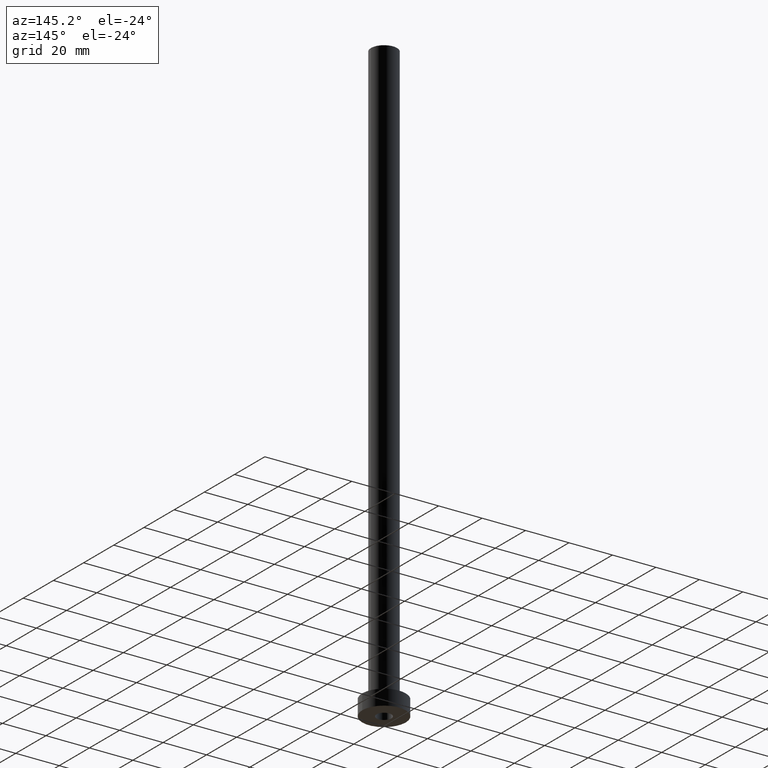
[diagram: clean part render]
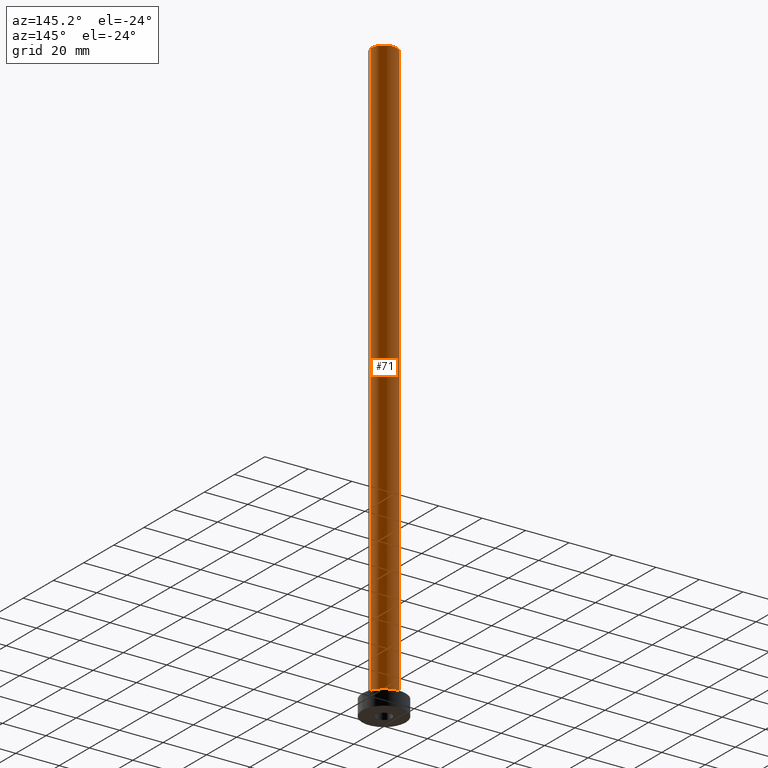
[diagram: same view with one face highlighted and labeled with its STEP entity id]
A machine part, auxiliary view. The second image highlights one B-rep face of the part: STEP entity #71.
In plain terms, the highlighted cylindrical surface (edge-blend (fillet) strip) has radius 6 mm, axis along (-0, -0, -1).
Its self-contained STEP definition (entity closure, byte-faithful):
#2 = CIRCLE ( 'NONE', #248, 6.000000000000000888 ) ;
#38 = EDGE_LOOP ( 'NONE', ( #432, #223, #344, #254 ) ) ;
#71 = ADVANCED_FACE ( 'NONE', ( #360 ), #255, .T. ) ;
#94 = CARTESIAN_POINT ( 'NONE',  ( -6.000000000000000888, 0.000000000000000000, 7.500000000000007105 ) ) ;
#102 = CARTESIAN_POINT ( 'NONE',  ( 6.000000000000000888, 7.347880794884120722E-16, 275.0000000000000000 ) ) ;
#108 = AXIS2_PLACEMENT_3D ( 'NONE', #437, #316, #429 ) ;
#118 = DIRECTION ( 'NONE',  ( -1.000000000000000000, 0.000000000000000000, 0.000000000000000000 ) ) ;
#119 = VECTOR ( 'NONE', #123, 1000.000000000000000 ) ;
#123 = DIRECTION ( 'NONE',  ( -0.000000000000000000, -0.000000000000000000, -1.000000000000000000 ) ) ;
#144 = EDGE_CURVE ( 'NONE', #393, #333, #2, .T. ) ;
#148 = EDGE_CURVE ( 'NONE', #266, #333, #262, .T. ) ;
#187 = CARTESIAN_POINT ( 'NONE',  ( 0.000000000000000000, 0.000000000000000000, 275.0000000000000000 ) ) ;
#215 = EDGE_CURVE ( 'NONE', #278, #266, #337, .T. ) ;
#217 = DIRECTION ( 'NONE',  ( 0.000000000000000000, 0.000000000000000000, 1.000000000000000000 ) ) ;
#223 = ORIENTED_EDGE ( 'NONE', *, *, #390, .T. ) ;
#248 = AXIS2_PLACEMENT_3D ( 'NONE', #322, #217, #430 ) ;
#254 = ORIENTED_EDGE ( 'NONE', *, *, #148, .F. ) ;
#255 = CYLINDRICAL_SURFACE ( 'NONE', #417, 6.000000000000000888 ) ;
#262 = LINE ( 'NONE', #362, #119 ) ;
#266 = VERTEX_POINT ( 'NONE', #280 ) ;
#271 = LINE ( 'NONE', #379, #338 ) ;
#278 = VERTEX_POINT ( 'NONE', #102 ) ;
#280 = CARTESIAN_POINT ( 'NONE',  ( -6.000000000000000888, 0.000000000000000000, 275.0000000000000000 ) ) ;
#289 = DIRECTION ( 'NONE',  ( -0.000000000000000000, -0.000000000000000000, -1.000000000000000000 ) ) ;
#305 = DIRECTION ( 'NONE',  ( -0.000000000000000000, -0.000000000000000000, -1.000000000000000000 ) ) ;
#316 = DIRECTION ( 'NONE',  ( 0.000000000000000000, 0.000000000000000000, 1.000000000000000000 ) ) ;
#322 = CARTESIAN_POINT ( 'NONE',  ( 0.000000000000000000, 0.000000000000000000, 7.500000000000007105 ) ) ;
#333 = VERTEX_POINT ( 'NONE', #94 ) ;
#337 = CIRCLE ( 'NONE', #108, 6.000000000000000888 ) ;
#338 = VECTOR ( 'NONE', #305, 1000.000000000000000 ) ;
#344 = ORIENTED_EDGE ( 'NONE', *, *, #144, .T. ) ;
#345 = CARTESIAN_POINT ( 'NONE',  ( 6.000000000000000888, 7.347880794884120722E-16, 7.500000000000007105 ) ) ;
#360 = FACE_OUTER_BOUND ( 'NONE', #38, .T. ) ;
#362 = CARTESIAN_POINT ( 'NONE',  ( -6.000000000000000888, 0.000000000000000000, 275.0000000000000000 ) ) ;
#379 = CARTESIAN_POINT ( 'NONE',  ( 6.000000000000000888, 7.347880794884120722E-16, 275.0000000000000000 ) ) ;
#390 = EDGE_CURVE ( 'NONE', #278, #393, #271, .T. ) ;
#393 = VERTEX_POINT ( 'NONE', #345 ) ;
#417 = AXIS2_PLACEMENT_3D ( 'NONE', #187, #289, #118 ) ;
#429 = DIRECTION ( 'NONE',  ( 1.000000000000000000, 0.000000000000000000, 0.000000000000000000 ) ) ;
#430 = DIRECTION ( 'NONE',  ( 1.000000000000000000, 0.000000000000000000, 0.000000000000000000 ) ) ;
#432 = ORIENTED_EDGE ( 'NONE', *, *, #215, .F. ) ;
#437 = CARTESIAN_POINT ( 'NONE',  ( 0.000000000000000000, 0.000000000000000000, 275.0000000000000000 ) ) ;